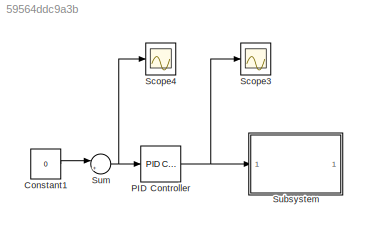
MODEL slx_59564ddc9a3b
KIND model
CONFIG AbsTol = 1e-3
CONFIG EnableMultiTasking = on
CONFIG FixedStep = 0.001
CONFIG MaxStep = auto
CONFIG MinStep = auto
CONFIG RelTol = 1e-3
CONFIG SampleTimeConstraint = Unconstrained
CONFIG SolverName = ode4
CONFIG StartTime = 0.0
CONFIG StopTime = 20
BLOCK [Constant] Constant1
  Value = 0
BLOCK [Reference] PID Controller  REF=pid_lib/PID Controller
  Ports = [1, 1]
  SourceBlock = pid_lib/PID Controller
  SourceProductBaseCode = SL
  SourceType = PID 1dof
BLOCK [Scope] Scope3
  Floating = off
  NumInputPorts = 1
  Ports = [1]
  ScopeSpecificationString = Simulink.scopes.TimeScopeBlockCfg('CurrentConfiguration', extmgr.ConfigurationSet(extmgr.Configuration('Core','General UI',true),extmgr.Configuration('Core','Source UI',true),extmgr.Configuration('Sources','WiredSimulink',true,'DataLoggingVariableName','ScopeData3'),extmgr.Configuration('Visuals','Time Domain',true,'SerializedDisplays',{struct('MinYLimReal','-3.12757','MaxYLimReal','6.00467','YLab...<+1422ch>
BLOCK [Scope] Scope4
  Floating = off
  NumInputPorts = 1
  Ports = [1]
  ScopeSpecificationString = Simulink.scopes.TimeScopeBlockCfg('CurrentConfiguration', extmgr.ConfigurationSet(extmgr.Configuration('Core','General UI',true),extmgr.Configuration('Core','Source UI',true),extmgr.Configuration('Sources','WiredSimulink',true,'DataLoggingVariableName','ScopeData4'),extmgr.Configuration('Visuals','Time Domain',true,'SerializedDisplays',{struct('MinYLimReal','-3.12757','MaxYLimReal','6.00467','YLab...<+1411ch>
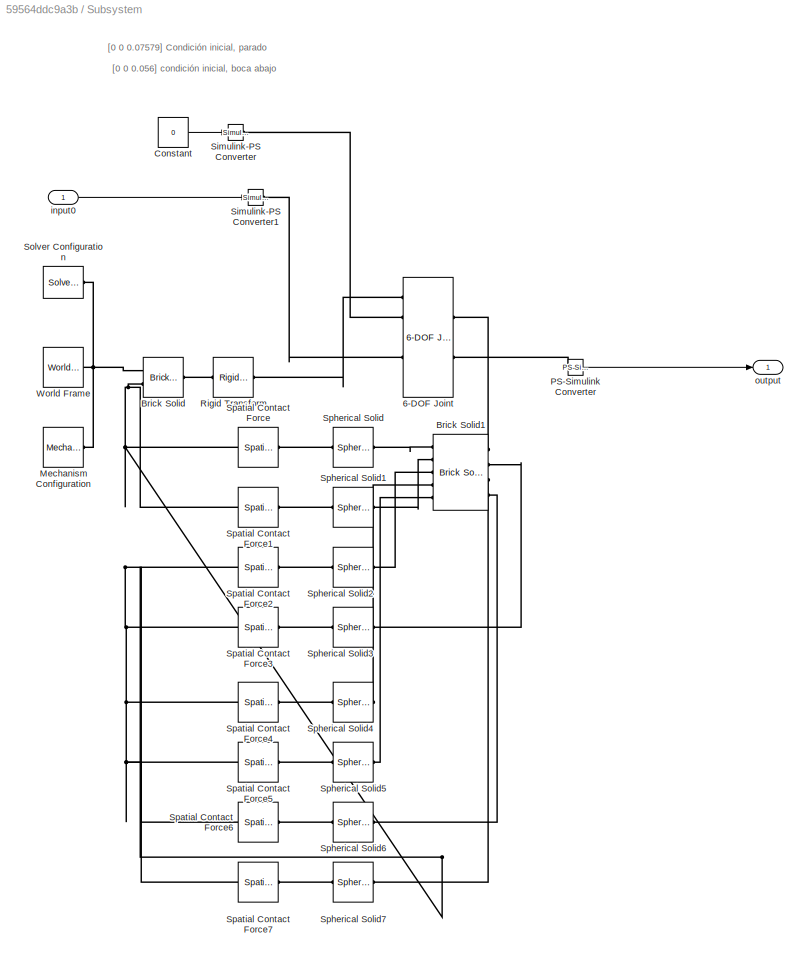
BLOCK [SubSystem] Subsystem
  Ports = [1, 1]
  RequestExecContextInheritance = off
BLOCK [Reference] Subsystem/6-DOF Joint  REF=sm_lib/Joints/6-DOF Joint
  Ports = [0, 0, 0, 0, 0, 5, 2]
  SourceBlock = sm_lib/Joints/6-DOF Joint
  SourceProductBaseCode = MS
  SourceType = 6-DOF Joint
BLOCK [Reference] Subsystem/Brick Solid  REF=sm_lib/Body Elements/Brick Solid
  Ports = [0, 0, 0, 0, 0, 2, 1]
  SourceBlock = sm_lib/Body Elements/Brick Solid
  SourceProductBaseCode = MS
  SourceType = Brick Solid
BLOCK [Reference] Subsystem/Brick Solid1  REF=sm_lib/Body Elements/Brick Solid
  Ports = [0, 0, 0, 0, 0, 5, 4]
  SourceBlock = sm_lib/Body Elements/Brick Solid
  SourceProductBaseCode = MS
  SourceType = Brick Solid
BLOCK [Constant] Subsystem/Constant
  Value = 0
BLOCK [Reference] Subsystem/Mechanism Configuration  REF=sm_lib/Utilities/Mechanism
Configuration
  Ports = [0, 0, 0, 0, 0, 0, 1]
  SourceBlock = sm_lib/Utilities/Mechanism\nConfiguration
  SourceProductBaseCode = MS
  SourceType = Mechanism\nConfiguration
BLOCK [Reference] Subsystem/PS-Simulink Converter  REF=nesl_utility/PS-Simulink
Converter
  Ports = [0, 1, 0, 0, 0, 1]
  SourceBlock = nesl_utility/PS-Simulink\nConverter
  SourceProductBaseCode = PW,SS
  SourceType = PS-Simulink\nConverter
BLOCK [Reference] Subsystem/Rigid Transform  REF=sm_lib/Frames and
Transforms/Rigid
Transform
  Ports = [0, 0, 0, 0, 0, 1, 1]
  SourceBlock = sm_lib/Frames and\nTransforms/Rigid\nTransform
  SourceProductBaseCode = MS
  SourceType = Rigid\nTransform
BLOCK [Reference] Subsystem/Simulink-PS Converter  REF=nesl_utility/Simulink-PS
Converter
  Ports = [1, 0, 0, 0, 0, 0, 1]
  SourceBlock = nesl_utility/Simulink-PS\nConverter
  SourceProductBaseCode = PW,SS
  SourceType = Simulink-PS\nConverter
BLOCK [Reference] Subsystem/Simulink-PS Converter1  REF=nesl_utility/Simulink-PS
Converter
  Ports = [1, 0, 0, 0, 0, 0, 1]
  SourceBlock = nesl_utility/Simulink-PS\nConverter
  SourceProductBaseCode = PW,SS
  SourceType = Simulink-PS\nConverter
BLOCK [Reference] Subsystem/Solver Configuration  REF=nesl_utility/Solver
Configuration
  Ports = [0, 0, 0, 0, 0, 0, 1]
  SourceBlock = nesl_utility/Solver\nConfiguration
  SourceProductBaseCode = PW,SS
  SourceType = Solver\nConfiguration
BLOCK [Reference] Subsystem/Spatial Contact Force  REF=sm_lib/Forces and
Torques/Spatial
Contact Force
  Ports = [0, 0, 0, 0, 0, 1, 1]
  SourceBlock = sm_lib/Forces and\nTorques/Spatial\nContact Force
  SourceProductBaseCode = MS
  SourceType = Spatial\nContact Force
BLOCK [Reference] Subsystem/Spatial Contact Force1  REF=sm_lib/Forces and
Torques/Spatial
Contact Force
  Ports = [0, 0, 0, 0, 0, 1, 1]
  SourceBlock = sm_lib/Forces and\nTorques/Spatial\nContact Force
  SourceProductBaseCode = MS
  SourceType = Spatial\nContact Force
BLOCK [Reference] Subsystem/Spatial Contact Force2  REF=sm_lib/Forces and
Torques/Spatial
Contact Force
  Ports = [0, 0, 0, 0, 0, 1, 1]
  SourceBlock = sm_lib/Forces and\nTorques/Spatial\nContact Force
  SourceProductBaseCode = MS
  SourceType = Spatial\nContact Force
BLOCK [Reference] Subsystem/Spatial Contact Force3  REF=sm_lib/Forces and
Torques/Spatial
Contact Force
  Ports = [0, 0, 0, 0, 0, 1, 1]
  SourceBlock = sm_lib/Forces and\nTorques/Spatial\nContact Force
  SourceProductBaseCode = MS
  SourceType = Spatial\nContact Force
BLOCK [Reference] Subsystem/Spatial Contact Force4  REF=sm_lib/Forces and
Torques/Spatial
Contact Force
  Ports = [0, 0, 0, 0, 0, 1, 1]
  SourceBlock = sm_lib/Forces and\nTorques/Spatial\nContact Force
  SourceProductBaseCode = MS
  SourceType = Spatial\nContact Force
BLOCK [Reference] Subsystem/Spatial Contact Force5  REF=sm_lib/Forces and
Torques/Spatial
Contact Force
  Ports = [0, 0, 0, 0, 0, 1, 1]
  SourceBlock = sm_lib/Forces and\nTorques/Spatial\nContact Force
  SourceProductBaseCode = MS
  SourceType = Spatial\nContact Force
BLOCK [Reference] Subsystem/Spatial Contact Force6  REF=sm_lib/Forces and
Torques/Spatial
Contact Force
  Ports = [0, 0, 0, 0, 0, 1, 1]
  SourceBlock = sm_lib/Forces and\nTorques/Spatial\nContact Force
  SourceProductBaseCode = MS
  SourceType = Spatial\nContact Force
BLOCK [Reference] Subsystem/Spatial Contact Force7  REF=sm_lib/Forces and
Torques/Spatial
Contact Force
  Ports = [0, 0, 0, 0, 0, 1, 1]
  SourceBlock = sm_lib/Forces and\nTorques/Spatial\nContact Force
  SourceProductBaseCode = MS
  SourceType = Spatial\nContact Force
BLOCK [Reference] Subsystem/Spherical Solid  REF=sm_lib/Body Elements/Spherical Solid
  Ports = [0, 0, 0, 0, 0, 1, 1]
  SourceBlock = sm_lib/Body Elements/Spherical Solid
  SourceProductBaseCode = MS
  SourceType = Spherical Solid
BLOCK [Reference] Subsystem/Spherical Solid1  REF=sm_lib/Body Elements/Spherical Solid
  Ports = [0, 0, 0, 0, 0, 1, 1]
  SourceBlock = sm_lib/Body Elements/Spherical Solid
  SourceProductBaseCode = MS
  SourceType = Spherical Solid
BLOCK [Reference] Subsystem/Spherical Solid2  REF=sm_lib/Body Elements/Spherical Solid
  Ports = [0, 0, 0, 0, 0, 1, 1]
  SourceBlock = sm_lib/Body Elements/Spherical Solid
  SourceProductBaseCode = MS
  SourceType = Spherical Solid
BLOCK [Reference] Subsystem/Spherical Solid3  REF=sm_lib/Body Elements/Spherical Solid
  Ports = [0, 0, 0, 0, 0, 1, 1]
  SourceBlock = sm_lib/Body Elements/Spherical Solid
  SourceProductBaseCode = MS
  SourceType = Spherical Solid
BLOCK [Reference] Subsystem/Spherical Solid4  REF=sm_lib/Body Elements/Spherical Solid
  Ports = [0, 0, 0, 0, 0, 1, 1]
  SourceBlock = sm_lib/Body Elements/Spherical Solid
  SourceProductBaseCode = MS
  SourceType = Spherical Solid
BLOCK [Reference] Subsystem/Spherical Solid5  REF=sm_lib/Body Elements/Spherical Solid
  Ports = [0, 0, 0, 0, 0, 1, 1]
  SourceBlock = sm_lib/Body Elements/Spherical Solid
  SourceProductBaseCode = MS
  SourceType = Spherical Solid
BLOCK [Reference] Subsystem/Spherical Solid6  REF=sm_lib/Body Elements/Spherical Solid
  Ports = [0, 0, 0, 0, 0, 1, 1]
  SourceBlock = sm_lib/Body Elements/Spherical Solid
  SourceProductBaseCode = MS
  SourceType = Spherical Solid
BLOCK [Reference] Subsystem/Spherical Solid7  REF=sm_lib/Body Elements/Spherical Solid
  Ports = [0, 0, 0, 0, 0, 1, 1]
  SourceBlock = sm_lib/Body Elements/Spherical Solid
  SourceProductBaseCode = MS
  SourceType = Spherical Solid
BLOCK [Reference] Subsystem/World Frame  REF=sm_lib/Frames and
Transforms/World Frame
  Ports = [0, 0, 0, 0, 0, 0, 1]
  SourceBlock = sm_lib/Frames and\nTransforms/World Frame
  SourceProductBaseCode = MS
  SourceType = World Frame
BLOCK [Inport] Subsystem/input0
BLOCK [Outport] Subsystem/output
BLOCK [Sum] Sum
  Inputs = |+-
  Ports = [2, 1]
ANNOTATION Subsystem: [0 0 0.056] condición inicial, boca abajo
ANNOTATION Subsystem: [0 0 0.07579] Condición inicial, parado
LINE Constant1:1 -> Sum:1
NET PID Controller:1 -> Scope3:1, Subsystem:1
LINE Subsystem/Constant:1 -> Subsystem/Simulink-PS Converter:1
LINE Subsystem/PS-Simulink Converter:1 -> Subsystem/output:1
LINE Subsystem/input0:1 -> Subsystem/Simulink-PS Converter1:1
NET Sum:1 -> PID Controller:1, Scope4:1
PLINE Subsystem/6-DOF Joint:LConn1 -- Subsystem/Rigid Transform:RConn1
PLINE Subsystem/6-DOF Joint:LConn2 -- Subsystem/Simulink-PS Converter:RConn1
PLINE Subsystem/6-DOF Joint:LConn4 -- Subsystem/Simulink-PS Converter1:RConn1
PLINE Subsystem/6-DOF Joint:RConn1 -- Subsystem/Brick Solid1:RConn1
PLINE Subsystem/6-DOF Joint:RConn2 -- Subsystem/PS-Simulink Converter:LConn1
PLINE Subsystem/Brick Solid1:LConn1 -- Subsystem/Spherical Solid:RConn1
PLINE Subsystem/Brick Solid1:LConn2 -- Subsystem/Spherical Solid1:RConn1
PLINE Subsystem/Brick Solid1:LConn3 -- Subsystem/Spherical Solid2:RConn1
PLINE Subsystem/Brick Solid1:LConn4 -- Subsystem/Spherical Solid4:RConn1
PLINE Subsystem/Brick Solid1:LConn5 -- Subsystem/Spherical Solid5:RConn1
PLINE Subsystem/Brick Solid1:RConn2 -- Subsystem/Spherical Solid3:RConn1
PLINE Subsystem/Brick Solid1:RConn3 -- Subsystem/Spherical Solid7:RConn1
PLINE Subsystem/Brick Solid1:RConn4 -- Subsystem/Spherical Solid6:RConn1
PNET net1: Subsystem/Brick Solid:LConn1 -- Subsystem/Mechanism Configuration:RConn1 -- Subsystem/Solver Configuration:RConn1 -- Subsystem/World Frame:RConn1
PNET net2: Subsystem/Brick Solid:LConn2 -- Subsystem/Spatial Contact Force1:LConn1 -- Subsystem/Spatial Contact Force2:LConn1 -- Subsystem/Spatial Contact Force3:LConn1 -- Subsystem/Spatial Contact Force4:LConn1 -- Subsystem/Spatial Contact Force5:LConn1 -- Subsystem/Spatial Contact Force6:LConn1 -- Subsystem/Spatial Contact Force7:LConn1 -- Subsystem/Spatial Contact Force:LConn1
PLINE Subsystem/Brick Solid:RConn1 -- Subsystem/Rigid Transform:LConn1
PLINE Subsystem/Spatial Contact Force1:RConn1 -- Subsystem/Spherical Solid1:LConn1
PLINE Subsystem/Spatial Contact Force2:RConn1 -- Subsystem/Spherical Solid2:LConn1
PLINE Subsystem/Spatial Contact Force3:RConn1 -- Subsystem/Spherical Solid3:LConn1
PLINE Subsystem/Spatial Contact Force4:RConn1 -- Subsystem/Spherical Solid4:LConn1
PLINE Subsystem/Spatial Contact Force5:RConn1 -- Subsystem/Spherical Solid5:LConn1
PLINE Subsystem/Spatial Contact Force6:RConn1 -- Subsystem/Spherical Solid6:LConn1
PLINE Subsystem/Spatial Contact Force7:RConn1 -- Subsystem/Spherical Solid7:LConn1
PLINE Subsystem/Spatial Contact Force:RConn1 -- Subsystem/Spherical Solid:LConn1
note: NET lines group one-source signal fan-out (src -> all destinations, sorted); 1:1 wires keep LINE; PNET lines group multi-terminal physical nets as a canonical sorted terminal list (undirected conserving connections); 2-terminal nets keep the pairwise PLINE form
